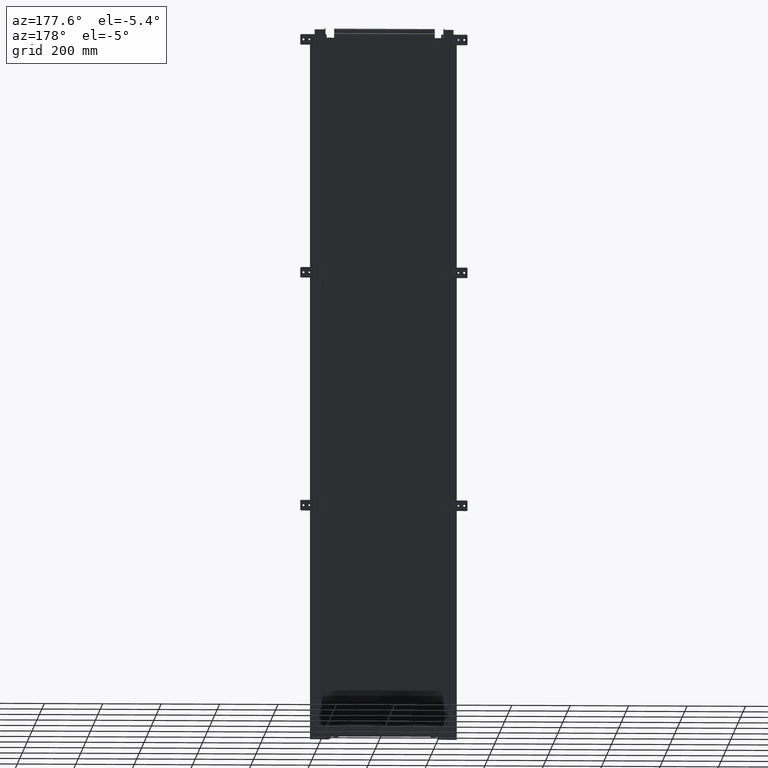
[diagram: clean part render]
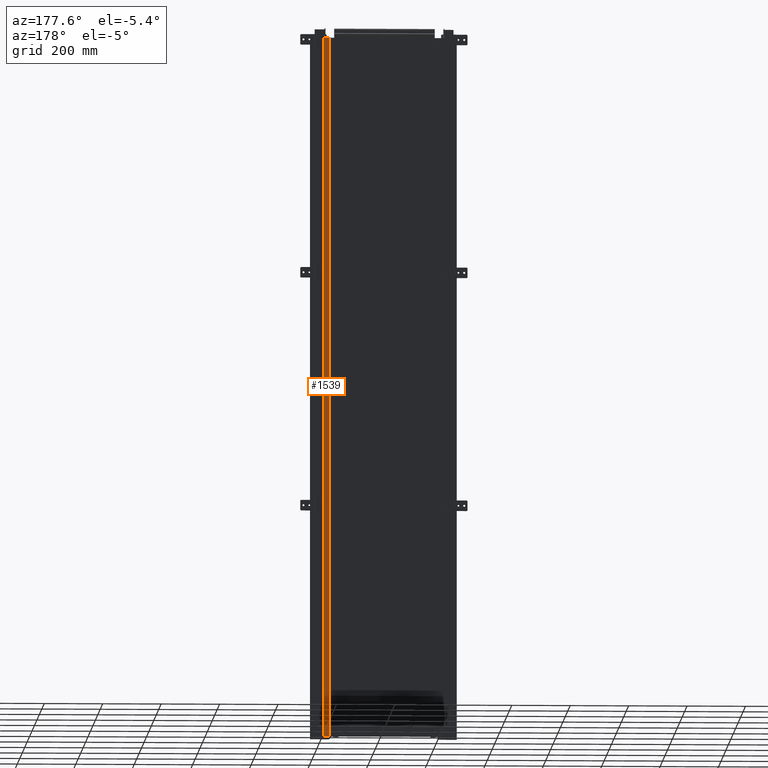
[diagram: same view with one face highlighted and labeled with its STEP entity id]
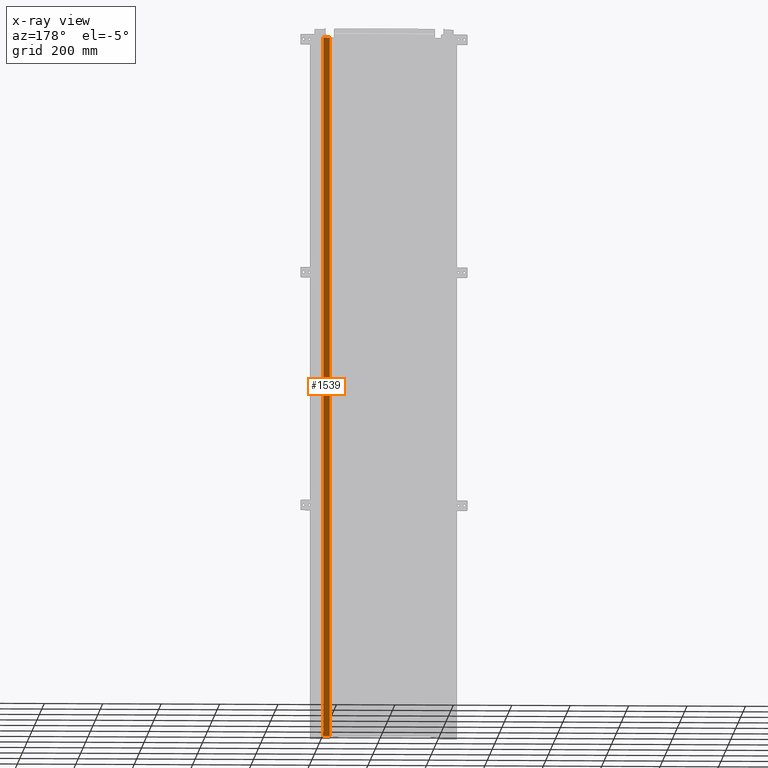
[diagram: x-ray of the same camera — body ghosted, the highlighted face saturated]
A machine part, auxiliary view. The second image highlights one B-rep face of the part: STEP entity #1539.
The next image is the same camera in x-ray: the body ghosted, the highlighted face saturated — about 0% of this face is hidden behind the body in this view.
In plain terms, the highlighted planar face has unit normal (0, 1, 0).
Its self-contained STEP definition (entity closure, byte-faithful):
#597=DIRECTION('',(0.E0,1.E0,0.E0));
#598=VECTOR('',#597,2.4E3);
#599=CARTESIAN_POINT('',(-4.E1,-1.2E3,-5.E1));
#600=LINE('',#599,#598);
#601=DIRECTION('',(-1.E0,0.E0,0.E0));
#602=VECTOR('',#601,2.22E1);
#603=CARTESIAN_POINT('',(-1.78E1,1.2E3,-5.E1));
#604=LINE('',#603,#602);
#605=DIRECTION('',(1.E0,0.E0,0.E0));
#606=VECTOR('',#605,2.22E1);
#607=CARTESIAN_POINT('',(-4.E1,-1.2E3,-5.E1));
#608=LINE('',#607,#606);
#609=DIRECTION('',(0.E0,-1.E0,0.E0));
#610=VECTOR('',#609,2.4E3);
#611=CARTESIAN_POINT('',(-1.78E1,1.2E3,-5.E1));
#612=LINE('',#611,#610);
#845=CARTESIAN_POINT('',(-4.E1,-1.2E3,-5.E1));
#847=VERTEX_POINT('',#845);
#883=CARTESIAN_POINT('',(-4.E1,1.2E3,-5.E1));
#885=VERTEX_POINT('',#883);
#929=CARTESIAN_POINT('',(-1.78E1,1.2E3,-5.E1));
#930=CARTESIAN_POINT('',(-1.78E1,-1.2E3,-5.E1));
#931=VERTEX_POINT('',#929);
#932=VERTEX_POINT('',#930);
#1527=CARTESIAN_POINT('',(-1.83E1,-1.2E3,-5.E1));
#1528=DIRECTION('',(0.E0,0.E0,-1.E0));
#1529=DIRECTION('',(-1.E0,0.E0,0.E0));
#1530=AXIS2_PLACEMENT_3D('',#1527,#1528,#1529);
#1531=PLANE('',#1530);
#1532=ORIENTED_EDGE('',*,*,#1208,.T.);
#1533=ORIENTED_EDGE('',*,*,#1520,.F.);
#1534=ORIENTED_EDGE('',*,*,#1102,.T.);
#1536=ORIENTED_EDGE('',*,*,#1535,.F.);
#1537=EDGE_LOOP('',(#1532,#1533,#1534,#1536));
#1538=FACE_OUTER_BOUND('',#1537,.F.);
#1102=EDGE_CURVE('',#847,#932,#608,.T.);
#1208=EDGE_CURVE('',#931,#885,#604,.T.);
#1520=EDGE_CURVE('',#847,#885,#600,.T.);
#1535=EDGE_CURVE('',#931,#932,#612,.T.);
#1539=ADVANCED_FACE('',(#1538),#1531,.T.);